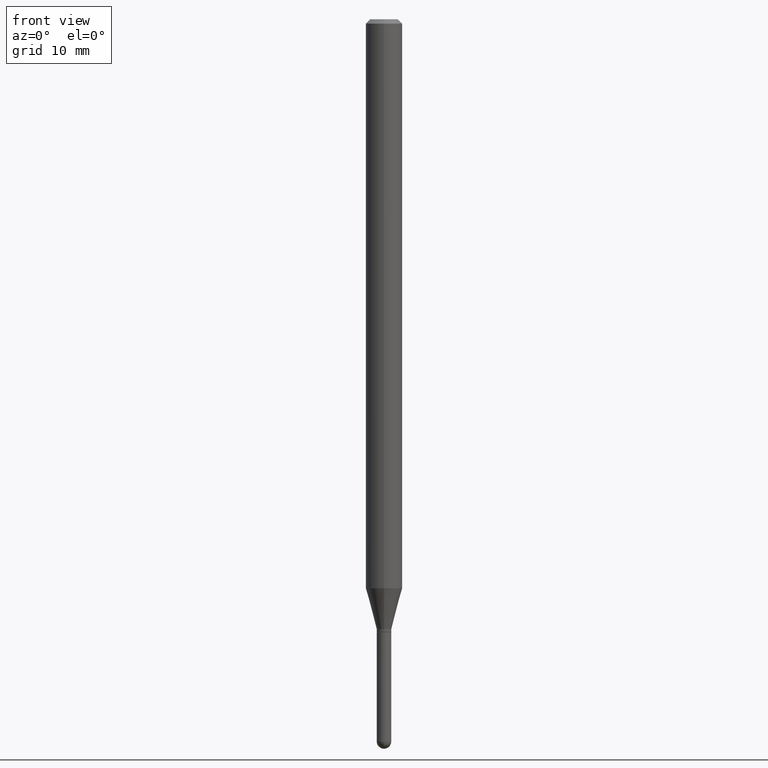
[diagram: clean part render]
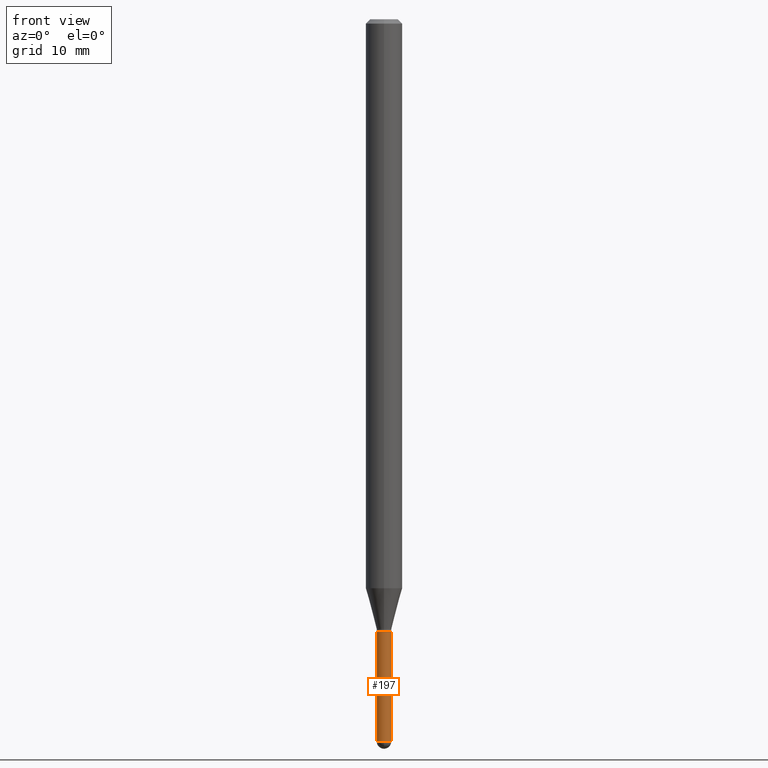
[diagram: same view with one face highlighted and labeled with its STEP entity id]
A machine part, front view. The second image highlights one B-rep face of the part: STEP entity #197.
In plain terms, the highlighted cylindrical surface (edge-blend (fillet) strip) has radius 0.635 mm, axis along (-0, 0, 1).
Its self-contained STEP definition (entity closure, byte-faithful):
#23 = DIRECTION ( 'NONE',  ( -2.445468806185136597E-29, 3.491481338843145583E-15, 1.000000000000000000 ) ) ;
#44 = ORIENTED_EDGE ( 'NONE', *, *, #315, .F. ) ;
#45 = CARTESIAN_POINT ( 'NONE',  ( -1.776356839399633526E-16, -0.02500000000000847378, -2.475000000000000089 ) ) ;
#48 = AXIS2_PLACEMENT_3D ( 'NONE', #338, #500, #297 ) ;
#67 = CARTESIAN_POINT ( 'NONE',  ( -0.02500000000000000486, 1.776356839400250810E-16, -1.229733772563726656E-30 ) ) ;
#68 = ORIENTED_EDGE ( 'NONE', *, *, #337, .T. ) ;
#114 = DIRECTION ( 'NONE',  ( 1.000000000000000000, -6.982962677686254878E-15, 0.000000000000000000 ) ) ;
#122 = VERTEX_POINT ( 'NONE', #223 ) ;
#129 = DIRECTION ( 'NONE',  ( 1.000000000000000000, -6.982962677686267499E-15, 4.876176775795936353E-29 ) ) ;
#138 = ORIENTED_EDGE ( 'NONE', *, *, #355, .T. ) ;
#140 = AXIS2_PLACEMENT_3D ( 'NONE', #153, #23, #467 ) ;
#142 = DIRECTION ( 'NONE',  ( -2.445468806185136597E-29, 3.491481338843145583E-15, 1.000000000000000000 ) ) ;
#144 = VERTEX_POINT ( 'NONE', #343 ) ;
#153 = CARTESIAN_POINT ( 'NONE',  ( 6.052535295308213750E-29, -8.641416313636786609E-15, -2.475000000000000089 ) ) ;
#167 = CYLINDRICAL_SURFACE ( 'NONE', #488, 0.02500000000000000486 ) ;
#179 = CIRCLE ( 'NONE', #48, 0.02500000000000000486 ) ;
#181 = LINE ( 'NONE', #67, #217 ) ;
#189 = VERTEX_POINT ( 'NONE', #45 ) ;
#191 = CARTESIAN_POINT ( 'NONE',  ( 5.135484492988787526E-29, -7.332110811570605290E-15, -2.100000000000000089 ) ) ;
#194 = CIRCLE ( 'NONE', #318, 0.02500000000000000139 ) ;
#197 = ADVANCED_FACE ( 'NONE', ( #361 ), #167, .T. ) ;
#217 = VECTOR ( 'NONE', #380, 39.37007874015748143 ) ;
#223 = CARTESIAN_POINT ( 'NONE',  ( -0.02500000000000000139, -7.809127878663670745E-15, -2.100000000000000089 ) ) ;
#224 = CARTESIAN_POINT ( 'NONE',  ( -0.02500000000000000486, -7.809127878663670745E-15, -2.475000000000000089 ) ) ;
#225 = CARTESIAN_POINT ( 'NONE',  ( 0.02500000000000000486, -1.745740669421567171E-16, 1.219044193948984299E-30 ) ) ;
#250 = EDGE_CURVE ( 'NONE', #122, #279, #194, .T. ) ;
#279 = VERTEX_POINT ( 'NONE', #369 ) ;
#289 = VECTOR ( 'NONE', #376, 39.37007874015748143 ) ;
#297 = DIRECTION ( 'NONE',  ( 1.000000000000000000, -6.982962677686253300E-15, 0.000000000000000000 ) ) ;
#315 = EDGE_CURVE ( 'NONE', #425, #122, #181, .T. ) ;
#318 = AXIS2_PLACEMENT_3D ( 'NONE', #191, #142, #114 ) ;
#337 = EDGE_CURVE ( 'NONE', #144, #279, #418, .T. ) ;
#338 = CARTESIAN_POINT ( 'NONE',  ( 6.052535295308213750E-29, -8.641416313636786609E-15, -2.475000000000000089 ) ) ;
#341 = EDGE_LOOP ( 'NONE', ( #44, #138, #510, #68, #349 ) ) ;
#343 = CARTESIAN_POINT ( 'NONE',  ( 0.02500000000000000486, -8.161337629545851828E-15, -2.475000000000000089 ) ) ;
#349 = ORIENTED_EDGE ( 'NONE', *, *, #250, .F. ) ;
#355 = EDGE_CURVE ( 'NONE', #425, #189, #179, .T. ) ;
#357 = DIRECTION ( 'NONE',  ( -2.445468806185136597E-29, 3.491481338843145583E-15, 1.000000000000000000 ) ) ;
#360 = CIRCLE ( 'NONE', #140, 0.02500000000000000486 ) ;
#361 = FACE_OUTER_BOUND ( 'NONE', #341, .T. ) ;
#366 = CARTESIAN_POINT ( 'NONE',  ( 0.000000000000000000, 0.000000000000000000, 0.000000000000000000 ) ) ;
#369 = CARTESIAN_POINT ( 'NONE',  ( 0.02500000000000000139, -7.506684878512761957E-15, -2.100000000000000089 ) ) ;
#376 = DIRECTION ( 'NONE',  ( -2.445468806185136877E-29, 3.491481338843145188E-15, 1.000000000000000000 ) ) ;
#380 = DIRECTION ( 'NONE',  ( -2.445468806185136877E-29, 3.491481338843145188E-15, 1.000000000000000000 ) ) ;
#418 = LINE ( 'NONE', #225, #289 ) ;
#425 = VERTEX_POINT ( 'NONE', #224 ) ;
#467 = DIRECTION ( 'NONE',  ( 1.000000000000000000, -6.982962677686253300E-15, 0.000000000000000000 ) ) ;
#469 = EDGE_CURVE ( 'NONE', #189, #144, #360, .T. ) ;
#488 = AXIS2_PLACEMENT_3D ( 'NONE', #366, #357, #129 ) ;
#500 = DIRECTION ( 'NONE',  ( -2.445468806185136597E-29, 3.491481338843145583E-15, 1.000000000000000000 ) ) ;
#510 = ORIENTED_EDGE ( 'NONE', *, *, #469, .T. ) ;